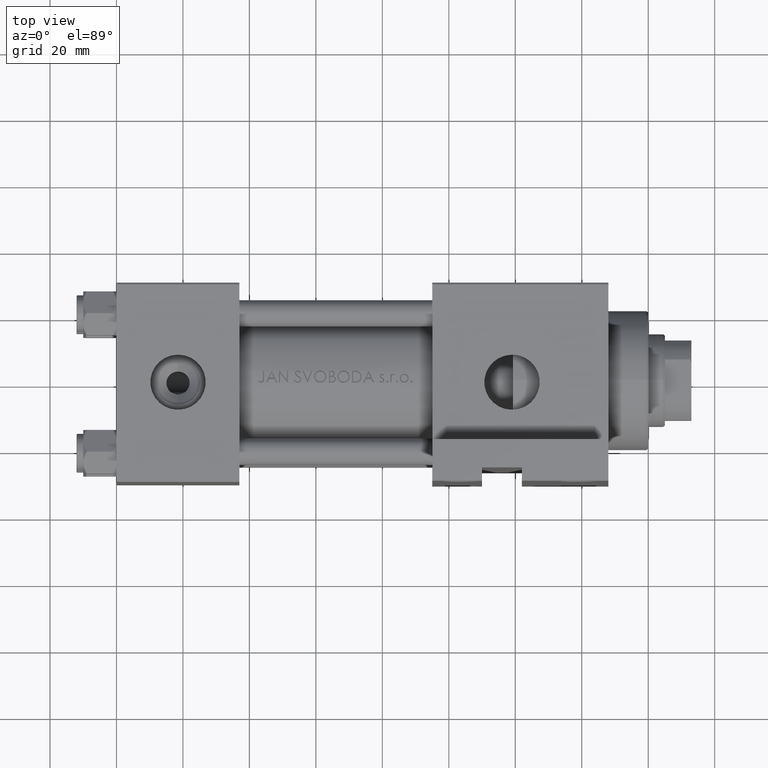
[diagram: clean part render]
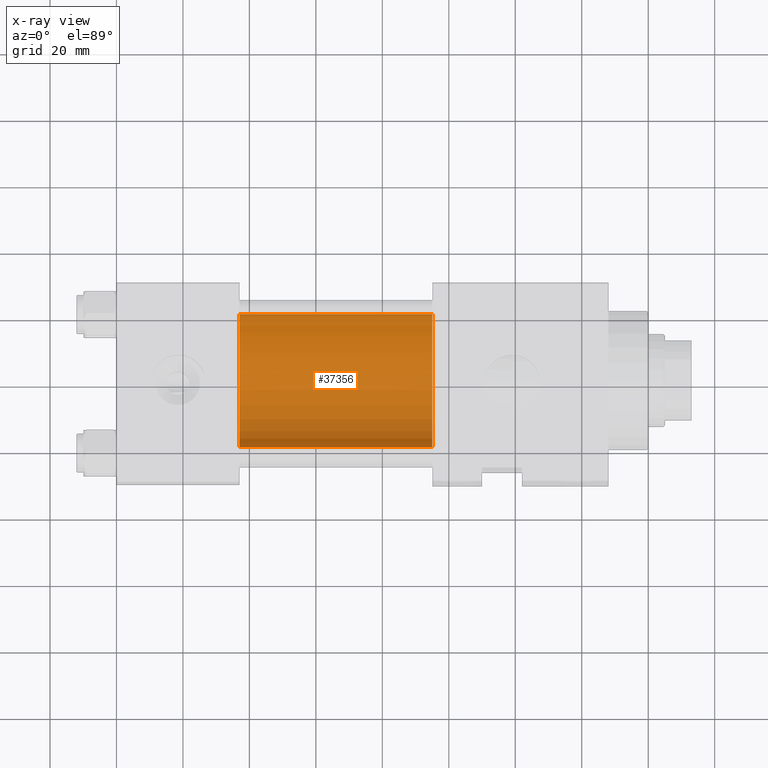
[diagram: x-ray — body ghosted, one internal face saturated and labeled with its STEP entity id]
A machine part, top view, then the same camera in x-ray: the body is ghosted and one INTERNAL B-rep face — a face not visible from any outside direction — is saturated and labeled: STEP entity #37356.
In plain terms, the highlighted cylindrical surface (partial cylindrical patch) has radius 20 mm, axis along (-1, -0, 0).
Its self-contained STEP definition (entity closure, byte-faithful):
#3034 = VERTEX_POINT ( 'NONE', #15336 ) ;
#3463 = FACE_OUTER_BOUND ( 'NONE', #43880, .T. ) ;
#3890 = CARTESIAN_POINT ( 'NONE',  ( 95.00000000000000000, -1.224646799147354686E-16, 21.00000000000000000 ) ) ;
#6438 = DIRECTION ( 'NONE',  ( 0.000000000000000000, 0.000000000000000000, 1.000000000000000000 ) ) ;
#6535 = EDGE_CURVE ( 'NONE', #23609, #3034, #40003, .T. ) ;
#6595 = ORIENTED_EDGE ( 'NONE', *, *, #23162, .F. ) ;
#7544 = DIRECTION ( 'NONE',  ( 1.000000000000000000, 0.000000000000000000, 0.000000000000000000 ) ) ;
#7755 = VERTEX_POINT ( 'NONE', #23435 ) ;
#11176 = DIRECTION ( 'NONE',  ( -1.000000000000000000, -0.000000000000000000, -0.000000000000000000 ) ) ;
#14387 = CARTESIAN_POINT ( 'NONE',  ( 95.00000000000000000, 2.326828918379970576E-15, -19.00000000000000000 ) ) ;
#14612 = AXIS2_PLACEMENT_3D ( 'NONE', #17759, #40211, #6438 ) ;
#15336 = CARTESIAN_POINT ( 'NONE',  ( 37.00000000000000000, -1.224646799147354686E-16, 21.00000000000000000 ) ) ;
#17181 = CARTESIAN_POINT ( 'NONE',  ( 95.00000000000000000, -1.224646799147354686E-16, 1.000000000000000888 ) ) ;
#17584 = ORIENTED_EDGE ( 'NONE', *, *, #6535, .F. ) ;
#17759 = CARTESIAN_POINT ( 'NONE',  ( 95.00000000000000000, -1.224646799147354686E-16, 1.000000000000000888 ) ) ;
#18240 = VECTOR ( 'NONE', #11176, 1000.000000000000000 ) ;
#18484 = CYLINDRICAL_SURFACE ( 'NONE', #14612, 20.00000000000000000 ) ;
#20832 = VERTEX_POINT ( 'NONE', #3890 ) ;
#23162 = EDGE_CURVE ( 'NONE', #7755, #23609, #44948, .T. ) ;
#23435 = CARTESIAN_POINT ( 'NONE',  ( 95.00000000000000000, 2.326828918379970576E-15, -19.00000000000000000 ) ) ;
#23609 = VERTEX_POINT ( 'NONE', #24146 ) ;
#23982 = EDGE_CURVE ( 'NONE', #20832, #3034, #35914, .T. ) ;
#24118 = EDGE_CURVE ( 'NONE', #7755, #20832, #39548, .T. ) ;
#24146 = CARTESIAN_POINT ( 'NONE',  ( 37.00000000000000000, 2.326828918379970576E-15, -19.00000000000000000 ) ) ;
#28706 = CARTESIAN_POINT ( 'NONE',  ( 37.00000000000000000, -1.224646799147354686E-16, 1.000000000000000888 ) ) ;
#32473 = ORIENTED_EDGE ( 'NONE', *, *, #24118, .T. ) ;
#33365 = DIRECTION ( 'NONE',  ( 1.000000000000000000, 0.000000000000000000, 0.000000000000000000 ) ) ;
#35565 = VECTOR ( 'NONE', #47501, 1000.000000000000000 ) ;
#35764 = ORIENTED_EDGE ( 'NONE', *, *, #23982, .T. ) ;
#35914 = LINE ( 'NONE', #40584, #35565 ) ;
#37356 = ADVANCED_FACE ( 'NONE', ( #3463 ), #18484, .F. ) ;
#37533 = AXIS2_PLACEMENT_3D ( 'NONE', #28706, #33365, #43989 ) ;
#37957 = AXIS2_PLACEMENT_3D ( 'NONE', #17181, #7544, #41076 ) ;
#39548 = CIRCLE ( 'NONE', #37957, 20.00000000000000000 ) ;
#40003 = CIRCLE ( 'NONE', #37533, 20.00000000000000000 ) ;
#40211 = DIRECTION ( 'NONE',  ( -1.000000000000000000, -0.000000000000000000, -0.000000000000000000 ) ) ;
#40584 = CARTESIAN_POINT ( 'NONE',  ( 95.00000000000000000, -1.224646799147354686E-16, 21.00000000000000000 ) ) ;
#41076 = DIRECTION ( 'NONE',  ( 0.000000000000000000, 0.000000000000000000, -1.000000000000000000 ) ) ;
#43880 = EDGE_LOOP ( 'NONE', ( #6595, #32473, #35764, #17584 ) ) ;
#43989 = DIRECTION ( 'NONE',  ( 0.000000000000000000, 0.000000000000000000, -1.000000000000000000 ) ) ;
#44948 = LINE ( 'NONE', #14387, #18240 ) ;
#47501 = DIRECTION ( 'NONE',  ( -1.000000000000000000, -0.000000000000000000, -0.000000000000000000 ) ) ;